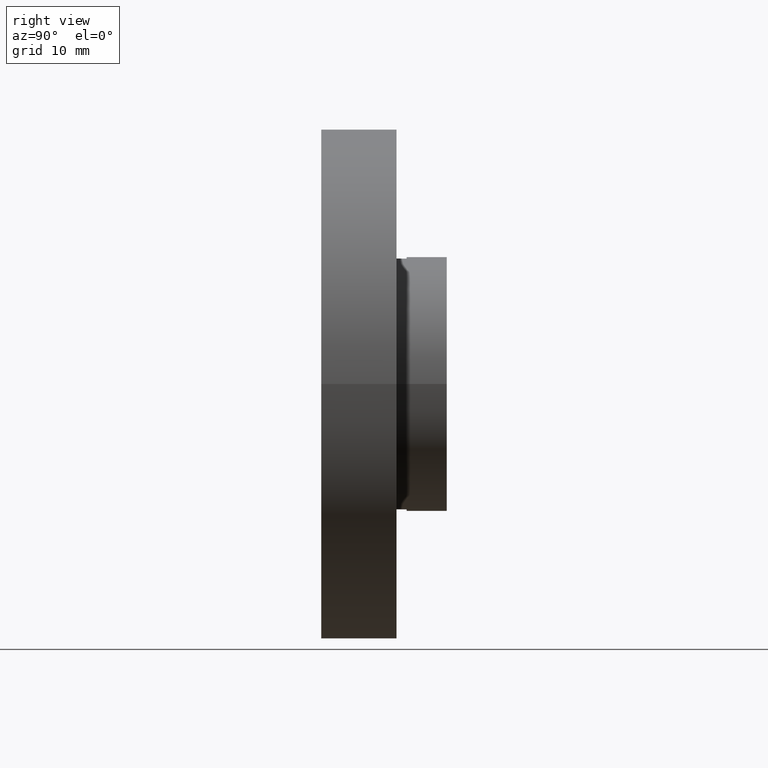
[diagram: clean part render]
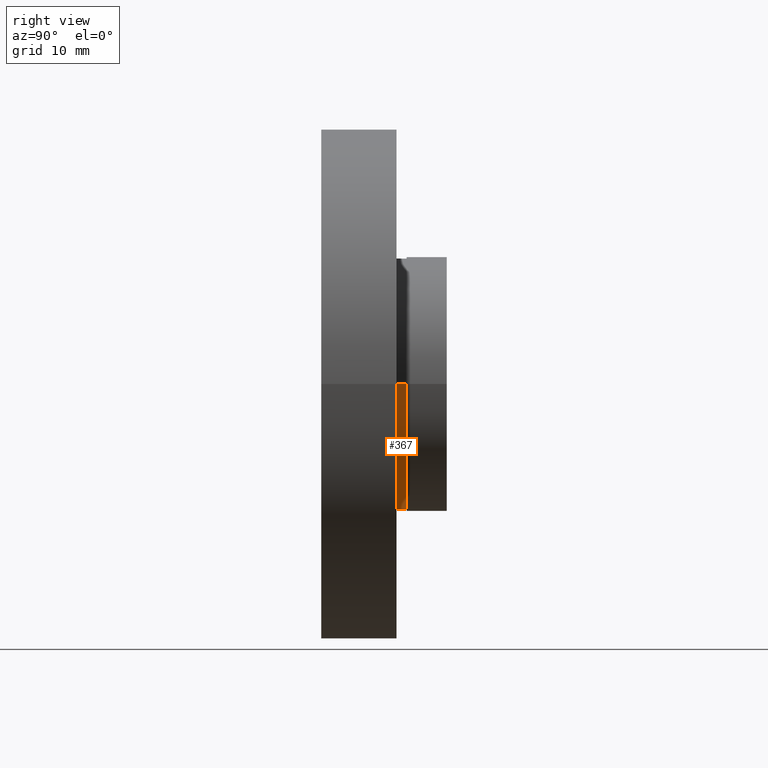
[diagram: same view with one face highlighted and labeled with its STEP entity id]
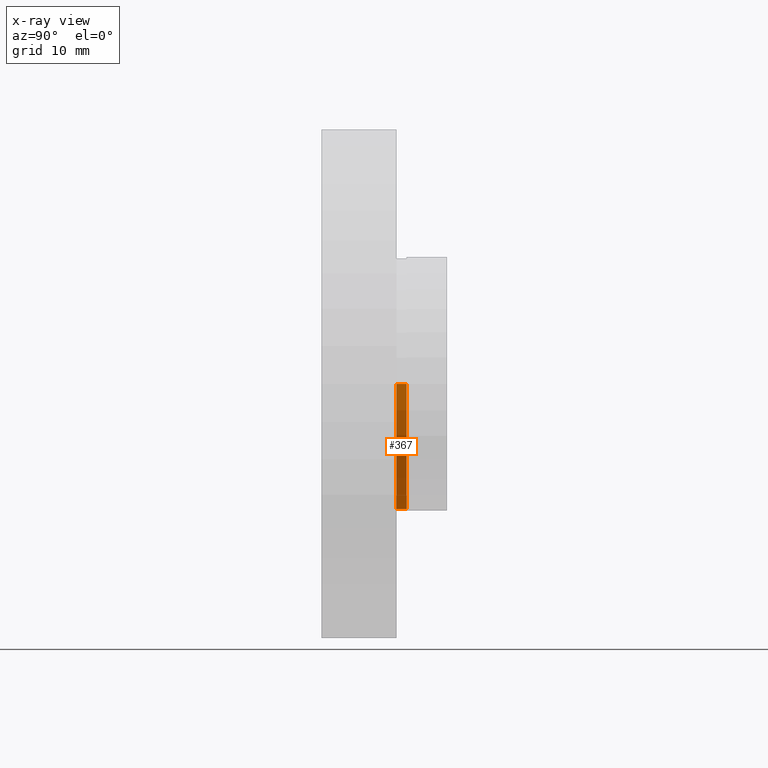
[diagram: x-ray of the same camera — body ghosted, the highlighted face saturated]
A machine part, right view. The second image highlights one B-rep face of the part: STEP entity #367.
The next image is the same camera in x-ray: the body ghosted, the highlighted face saturated — about 0% of this face is hidden behind the body in this view.
In plain terms, the highlighted cylindrical surface (partial cylindrical patch) has radius 12.55 mm, axis along (-0, 1, -0).
Its self-contained STEP definition (entity closure, byte-faithful):
#39 = DIRECTION ( 'NONE',  ( -1.224646799147351000E-016, 1.000000000000000000, -0.0000000000000000000 ) ) ;
#50 = DIRECTION ( 'NONE',  ( -1.224646799147351000E-016, 1.000000000000000000, -0.0000000000000000000 ) ) ;
#78 = VERTEX_POINT ( 'NONE', #359 ) ;
#96 = ORIENTED_EDGE ( 'NONE', *, *, #534, .F. ) ;
#100 = ORIENTED_EDGE ( 'NONE', *, *, #557, .F. ) ;
#141 = AXIS2_PLACEMENT_3D ( 'NONE', #328, #279, #257 ) ;
#143 = CYLINDRICAL_SURFACE ( 'NONE', #254, 12.55000000000000100 ) ;
#144 = FACE_OUTER_BOUND ( 'NONE', #145, .T. ) ;
#145 = EDGE_LOOP ( 'NONE', ( #100, #224, #322, #96 ) ) ;
#160 = DIRECTION ( 'NONE',  ( -1.224646799147351000E-016, 1.000000000000000000, -0.0000000000000000000 ) ) ;
#161 = AXIS2_PLACEMENT_3D ( 'NONE', #422, #166, #379 ) ;
#166 = DIRECTION ( 'NONE',  ( -1.224646799147351000E-016, 1.000000000000000000, -0.0000000000000000000 ) ) ;
#202 = CARTESIAN_POINT ( 'NONE',  ( -12.55000000000000100, 16.88601823708207700, 0.0000000000000000000 ) ) ;
#215 = VERTEX_POINT ( 'NONE', #366 ) ;
#224 = ORIENTED_EDGE ( 'NONE', *, *, #525, .T. ) ;
#231 = CARTESIAN_POINT ( 'NONE',  ( 0.0000000000000000000, 16.88601823708207700, 0.0000000000000000000 ) ) ;
#235 = CARTESIAN_POINT ( 'NONE',  ( 12.55000000000000100, 16.88601823708207700, 1.536931732929928400E-015 ) ) ;
#238 = VERTEX_POINT ( 'NONE', #249 ) ;
#249 = CARTESIAN_POINT ( 'NONE',  ( 12.55000000000000200, 8.500000000000000000, 1.536931732929928400E-015 ) ) ;
#254 = AXIS2_PLACEMENT_3D ( 'NONE', #231, #50, #431 ) ;
#257 = DIRECTION ( 'NONE',  ( -1.000000000000000000, -1.382249781654826400E-016, 0.0000000000000000000 ) ) ;
#259 = VERTEX_POINT ( 'NONE', #533 ) ;
#279 = DIRECTION ( 'NONE',  ( -1.224646799147351000E-016, 1.000000000000000000, -0.0000000000000000000 ) ) ;
#322 = ORIENTED_EDGE ( 'NONE', *, *, #553, .T. ) ;
#328 = CARTESIAN_POINT ( 'NONE',  ( 1.026991039163387700E-015, 8.499999999999998200, 0.0000000000000000000 ) ) ;
#359 = CARTESIAN_POINT ( 'NONE',  ( 12.55000000000000200, 7.500000000000000000, 1.536931732929928400E-015 ) ) ;
#366 = CARTESIAN_POINT ( 'NONE',  ( -12.54999999999999900, 8.499999999999996400, 0.0000000000000000000 ) ) ;
#367 = ADVANCED_FACE ( 'NONE', ( #144 ), #143, .T. ) ;
#379 = DIRECTION ( 'NONE',  ( -1.000000000000000000, -1.382249781654826400E-016, 0.0000000000000000000 ) ) ;
#422 = CARTESIAN_POINT ( 'NONE',  ( 1.149455719078122700E-015, 7.499999999999998200, 0.0000000000000000000 ) ) ;
#431 = DIRECTION ( 'NONE',  ( -1.000000000000000000, 0.0000000000000000000, 0.0000000000000000000 ) ) ;
#456 = VECTOR ( 'NONE', #39, 1000.000000000000000 ) ;
#465 = LINE ( 'NONE', #235, #456 ) ;
#477 = VECTOR ( 'NONE', #160, 1000.000000000000000 ) ;
#515 = LINE ( 'NONE', #202, #477 ) ;
#525 = EDGE_CURVE ( 'NONE', #78, #259, #622, .T. ) ;
#533 = CARTESIAN_POINT ( 'NONE',  ( -12.54999999999999900, 7.499999999999996400, 0.0000000000000000000 ) ) ;
#534 = EDGE_CURVE ( 'NONE', #238, #215, #564, .T. ) ;
#553 = EDGE_CURVE ( 'NONE', #259, #215, #515, .T. ) ;
#557 = EDGE_CURVE ( 'NONE', #78, #238, #465, .T. ) ;
#564 = CIRCLE ( 'NONE', #141, 12.55000000000000100 ) ;
#622 = CIRCLE ( 'NONE', #161, 12.55000000000000100 ) ;